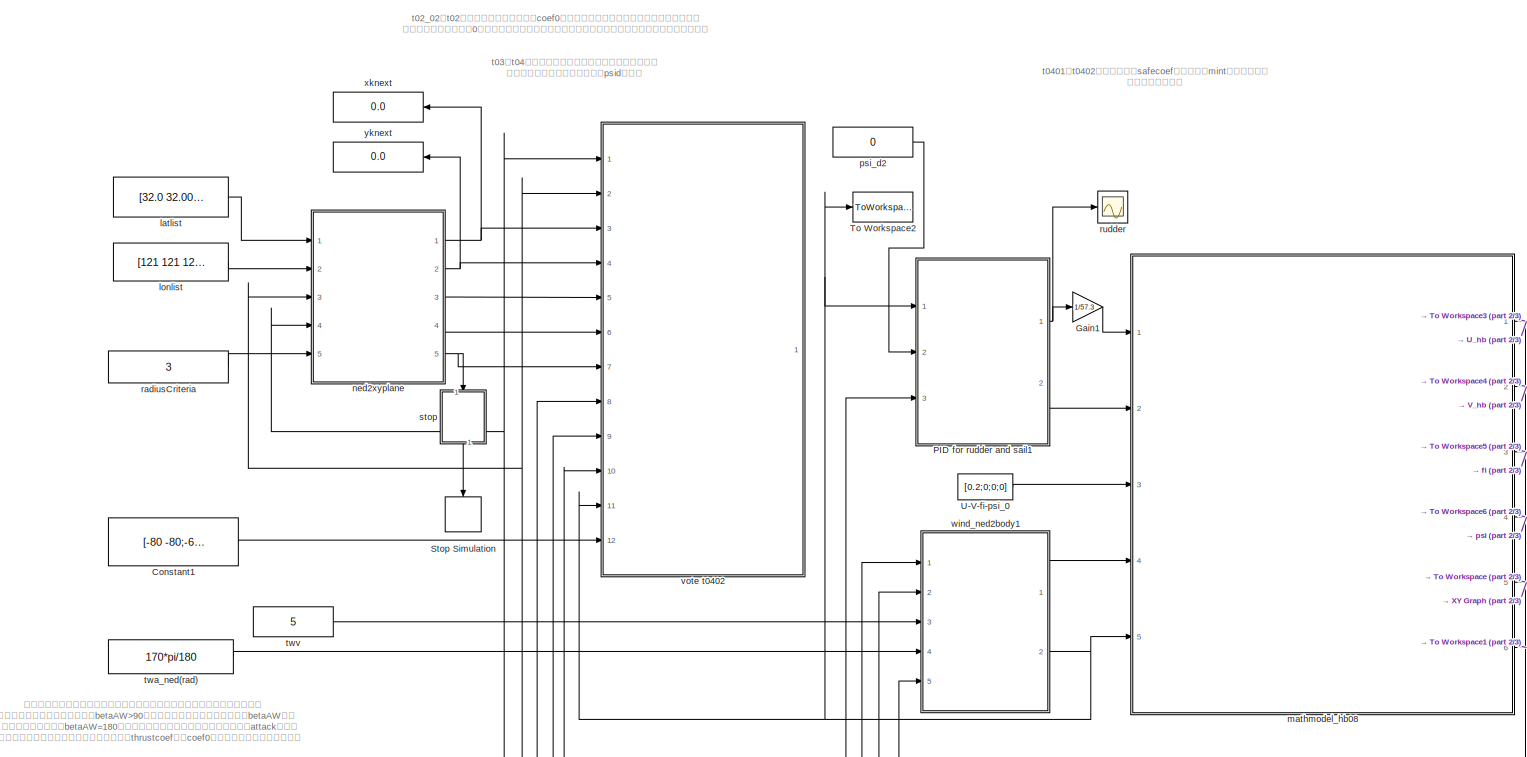
[diagram: root canvas - part 1/3, center side, full height]
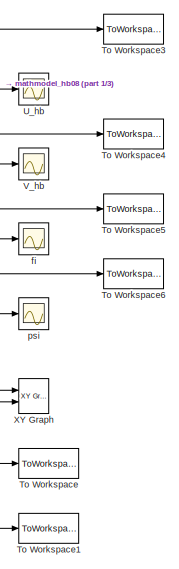
[diagram: root canvas - part 2/3, middle right region]
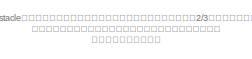
[diagram: root canvas - part 3/3, middle left region]
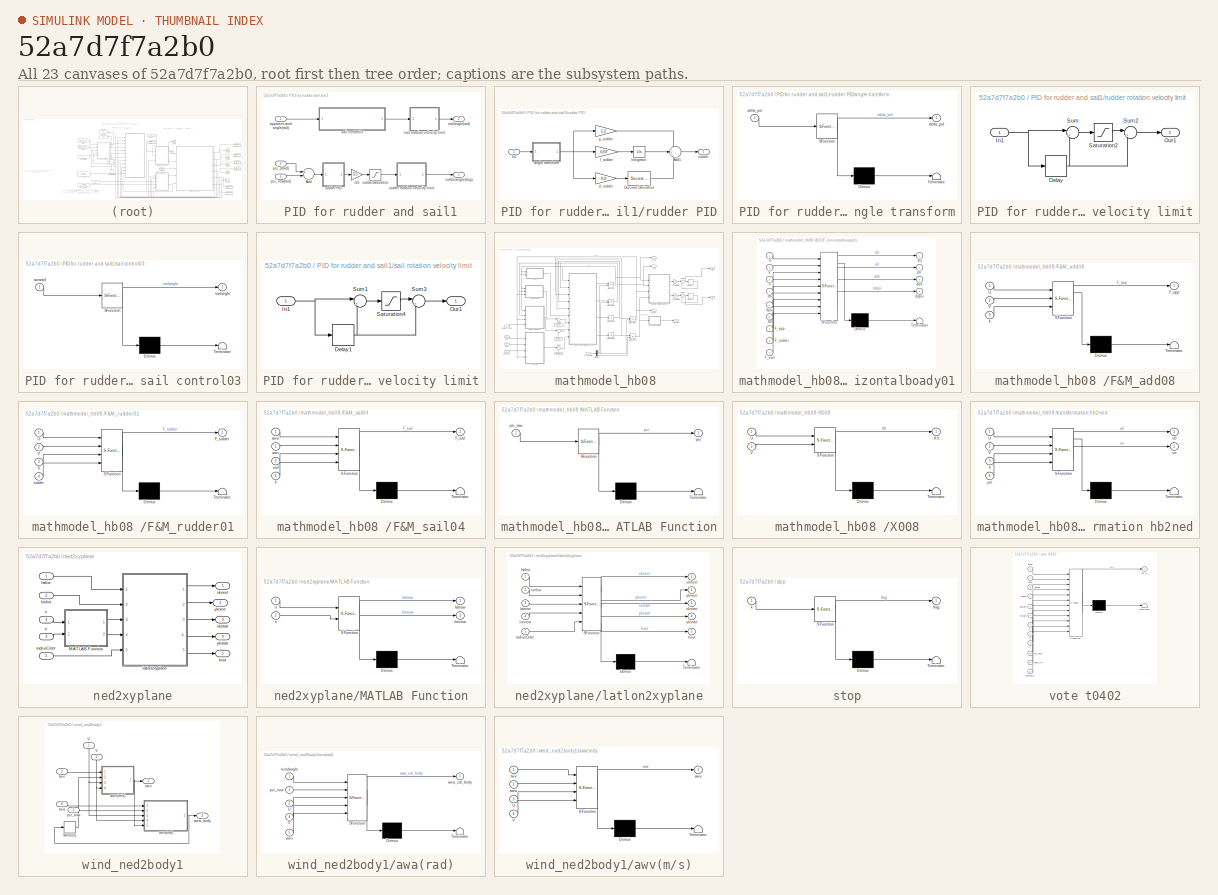
[diagram: thumbnail index - all 23 canvases of the model, root first then tree order]
MODEL slx_52a7d7f7a2b0
KIND model
BLOCK [Constant] Constant1
  Value = [-80 -80;-60 -20]
BLOCK [Gain] Gain1
  Gain = 1/57.3
  OutDataTypeStr = Inherit: Inherit via internal rule
  ParamDataTypeStr = Inherit: Inherit via internal rule
  SaturateOnIntegerOverflow = off
BLOCK [SubSystem] PID for rudder and sail1
  Ports = [3, 2]
  RequestExecContextInheritance = off
BLOCK [Sum] PID for rudder and sail1/Add
  InputSameDT = off
  Inputs = +-
  OutDataTypeStr = Inherit: Inherit via internal rule
  Ports = [2, 1]
  SaturateOnIntegerOverflow = off
BLOCK [Inport] PID for rudder and sail1/apparent wind angle(rad)
  IconDisplay = Port number
BLOCK [Inport] PID for rudder and sail1/psi_d(rad)
  IconDisplay = Port number
  Port = 2
BLOCK [Inport] PID for rudder and sail1/psi_now(rad)
  IconDisplay = Port number
  Port = 3
BLOCK [Gain] PID for rudder and sail1/r2d
  Gain = 57.3
  OutDataTypeStr = Inherit: Inherit via internal rule
  ParamDataTypeStr = Inherit: Inherit via internal rule
  SaturateOnIntegerOverflow = off
BLOCK [SubSystem] PID for rudder and sail1/rudder PID
  Ports = [1, 1]
  RequestExecContextInheritance = off
BLOCK [Sum] PID for rudder and sail1/rudder PID/Add1
  IconShape = round
  InputSameDT = off
  Inputs = +++
  OutDataTypeStr = Inherit: Inherit via internal rule
  Ports = [3, 1]
  SaturateOnIntegerOverflow = off
BLOCK [Reference] PID for rudder and sail1/rudder PID/Discrete Derivative  REF=simulink/Discrete/Discrete Derivative
  DoSatur = off
  ICPrevScaledInput = 0.0
  InputProcessing = Inherited
  LockScale = off
  OutDataType = fixdt(1, 16)
  OutDataTypeStr = Inherit: Inherit via internal rule
  OutMax = []
  OutMin = []
  OutScaling = 2^-10
  OutputDataTypeScalingMode = Inherit via internal rule
  Ports = [1, 1]
  RndMeth = Floor
  SourceBlock = simulink/Discrete/Discrete Derivative
  SourceType = Discrete Derivative
  gainval = 1.0
BLOCK [Gain] PID for rudder and sail1/rudder PID/I_rudder
  Gain = 0.07
  OutDataTypeStr = Inherit: Inherit via internal rule
  ParamDataTypeStr = Inherit: Inherit via internal rule
  SaturateOnIntegerOverflow = off
BLOCK [Inport] PID for rudder and sail1/rudder PID/In1
  IconDisplay = Port number
BLOCK [Integrator] PID for rudder and sail1/rudder PID/Integrator
  Ports = [1, 1]
BLOCK [SubSystem] PID for rudder and sail1/rudder PID/angle transform
  ErrorFcn = Stateflow.Translate.translate
  PermitHierarchicalResolution = ExplicitOnly
  Ports = [1, 1]
  RequestExecContextInheritance = off
  SFBlockType = MATLAB Function
  TreatAsAtomicUnit = on
BLOCK [Demux] PID for rudder and sail1/rudder PID/angle transform/ Demux 
  Outputs = 1
  Ports = [1, 1]
BLOCK [S-Function] PID for rudder and sail1/rudder PID/angle transform/ SFunction 
  EnableBusSupport = on
  FunctionName = sf_sfun
  PortCounts = [1 2]
  Ports = [1, 2]
  Tag = Stateflow S-Function final_control_model08t02_02 3
BLOCK [Terminator] PID for rudder and sail1/rudder PID/angle transform/ Terminator 
BLOCK [Outport] PID for rudder and sail1/rudder PID/angle transform/delta_pid
  IconDisplay = Port number
BLOCK [Inport] PID for rudder and sail1/rudder PID/angle transform/delta_psi
  IconDisplay = Port number
BLOCK [Gain] PID for rudder and sail1/rudder PID/d_rudder
  Gain = 0.4
  OutDataTypeStr = Inherit: Inherit via internal rule
  ParamDataTypeStr = Inherit: Inherit via internal rule
  SaturateOnIntegerOverflow = off
BLOCK [Gain] PID for rudder and sail1/rudder PID/p_rudder
  Gain = 1.2
  OutDataTypeStr = Inherit: Inherit via internal rule
  ParamDataTypeStr = Inherit: Inherit via internal rule
  SaturateOnIntegerOverflow = off
BLOCK [Outport] PID for rudder and sail1/rudder PID/rudder
  IconDisplay = Port number
BLOCK [SubSystem] PID for rudder and sail1/rudder rotation velocity limit
  Ports = [1, 1]
  RequestExecContextInheritance = off
BLOCK [Delay] PID for rudder and sail1/rudder rotation velocity limit/Delay
  DelayLength = 1
  InitialCondition = 0
  InputPortMap = u0
  Ports = [1, 1]
BLOCK [Inport] PID for rudder and sail1/rudder rotation velocity limit/In1
  IconDisplay = Port number
BLOCK [Outport] PID for rudder and sail1/rudder rotation velocity limit/Out1
  IconDisplay = Port number
BLOCK [Saturate] PID for rudder and sail1/rudder rotation velocity limit/Saturation2
  InputPortMap = u0
  LowerLimit = -4
  Ports = [1, 1]
  UpperLimit = 4
BLOCK [Sum] PID for rudder and sail1/rudder rotation velocity limit/Sum
  IconShape = round
  InputSameDT = off
  Inputs = |+-
  OutDataTypeStr = Inherit: Inherit via internal rule
  Ports = [2, 1]
  SaturateOnIntegerOverflow = off
BLOCK [Sum] PID for rudder and sail1/rudder rotation velocity limit/Sum2
  IconShape = round
  InputSameDT = off
  Inputs = |++
  OutDataTypeStr = Inherit: Inherit via internal rule
  Ports = [2, 1]
  SaturateOnIntegerOverflow = off
BLOCK [Saturate] PID for rudder and sail1/rudderSaturation
  InputPortMap = u0
  LowerLimit = -35
  Ports = [1, 1]
  UpperLimit = 35
BLOCK [Outport] PID for rudder and sail1/rudderangle(deg)
  IconDisplay = Port number
BLOCK [SubSystem] PID for rudder and sail1/sail control03
  ErrorFcn = Stateflow.Translate.translate
  PermitHierarchicalResolution = ExplicitOnly
  Ports = [1, 1]
  RequestExecContextInheritance = off
  SFBlockType = MATLAB Function
  TreatAsAtomicUnit = on
BLOCK [Demux] PID for rudder and sail1/sail control03/ Demux 
  Outputs = 1
  Ports = [1, 1]
BLOCK [S-Function] PID for rudder and sail1/sail control03/ SFunction 
  EnableBusSupport = on
  FunctionName = sf_sfun
  PortCounts = [1 2]
  Ports = [1, 2]
  Tag = Stateflow S-Function final_control_model08t02_02 7
BLOCK [Terminator] PID for rudder and sail1/sail control03/ Terminator 
BLOCK [Inport] PID for rudder and sail1/sail control03/awarad
  IconDisplay = Port number
BLOCK [Outport] PID for rudder and sail1/sail control03/sailangle
  IconDisplay = Port number
BLOCK [SubSystem] PID for rudder and sail1/sail rotation velocity limit
  Ports = [1, 1]
  RequestExecContextInheritance = off
BLOCK [Delay] PID for rudder and sail1/sail rotation velocity limit/Delay1
  DelayLength = 1
  InitialCondition = 0
  InputPortMap = u0
  Ports = [1, 1]
BLOCK [Inport] PID for rudder and sail1/sail rotation velocity limit/In1
  IconDisplay = Port number
BLOCK [Outport] PID for rudder and sail1/sail rotation velocity limit/Out1
  IconDisplay = Port number
BLOCK [Saturate] PID for rudder and sail1/sail rotation velocity limit/Saturation4
  InputPortMap = u0
  LowerLimit = -4
  Ports = [1, 1]
  UpperLimit = 4
BLOCK [Sum] PID for rudder and sail1/sail rotation velocity limit/Sum1
  IconShape = round
  InputSameDT = off
  Inputs = |+-
  OutDataTypeStr = Inherit: Inherit via internal rule
  Ports = [2, 1]
  SaturateOnIntegerOverflow = off
BLOCK [Sum] PID for rudder and sail1/sail rotation velocity limit/Sum3
  IconShape = round
  InputSameDT = off
  Inputs = |++
  OutDataTypeStr = Inherit: Inherit via internal rule
  Ports = [2, 1]
  SaturateOnIntegerOverflow = off
BLOCK [Outport] PID for rudder and sail1/sailangle(rad)
  IconDisplay = Port number
  Port = 2
BLOCK [Stop] Stop Simulation
BLOCK [ToWorkspace] To Workspace
  FixptAsFi = on
  MaxDataPoints = inf
  Ports = [1]
  SampleTime = -1
  Save2DSignal = 3-D array (concatenate along third dimension)
  SaveFormat = Timeseries
  VariableName = easty
BLOCK [ToWorkspace] To Workspace1
  FixptAsFi = on
  MaxDataPoints = inf
  Ports = [1]
  SampleTime = -1
  Save2DSignal = 3-D array (concatenate along third dimension)
  SaveFormat = Timeseries
  VariableName = northx
BLOCK [ToWorkspace] To Workspace2
  FixptAsFi = on
  MaxDataPoints = inf
  Ports = [1]
  SampleTime = -1
  Save2DSignal = 3-D array (concatenate along third dimension)
  SaveFormat = Timeseries
  VariableName = psi_d
BLOCK [ToWorkspace] To Workspace3
  FixptAsFi = on
  MaxDataPoints = inf
  Ports = [1]
  SampleTime = -1
  Save2DSignal = 3-D array (concatenate along third dimension)
  SaveFormat = Timeseries
  VariableName = U
BLOCK [ToWorkspace] To Workspace4
  FixptAsFi = on
  MaxDataPoints = inf
  Ports = [1]
  SampleTime = -1
  Save2DSignal = 3-D array (concatenate along third dimension)
  SaveFormat = Timeseries
  VariableName = V
BLOCK [ToWorkspace] To Workspace5
  FixptAsFi = on
  MaxDataPoints = inf
  Ports = [1]
  SampleTime = -1
  Save2DSignal = 3-D array (concatenate along third dimension)
  SaveFormat = Timeseries
  VariableName = fi
BLOCK [ToWorkspace] To Workspace6
  FixptAsFi = on
  MaxDataPoints = inf
  Ports = [1]
  SampleTime = -1
  Save2DSignal = 3-D array (concatenate along third dimension)
  SaveFormat = Timeseries
  VariableName = psi
BLOCK [Constant] U-V-fi-psi_0
  Value = [0.2;0;0;0]
BLOCK [Scope] U_hb
  DataFormat = StructureWithTime
  Floating = off
  NumInputPorts = 1
  Ports = [1]
  SampleTime = 0
  SaveName = ScopeData2
  ShowLegends = off
  YMax = 0
  YMin = -0.045
BLOCK [Scope] V_hb
  DataFormat = StructureWithTime
  Floating = off
  NumInputPorts = 1
  Ports = [1]
  SampleTime = 0
  SaveName = ScopeData1
  ShowLegends = off
  YMax = 0.1
  YMin = -0.1
BLOCK [Reference] XY Graph  REF=simulink/Sinks/XY Graph
  Ports = [2]
  SourceBlock = simulink/Sinks/XY Graph
  SourceType = XY scope.
  st = -1
  xmax = 150
  xmin = -050
  ymax = 150
  ymin = -50
BLOCK [Scope] fi
  DataFormat = StructureWithTime
  Floating = off
  NumInputPorts = 1
  Ports = [1]
  SampleTime = 0
  ShowLegends = off
  YMax = 0.25
  YMin = -0.2
BLOCK [Constant] latlist 
  Value = [32.0 32.0009 32.001]
BLOCK [Constant] lonlist
  Value = [121 121 121.001]
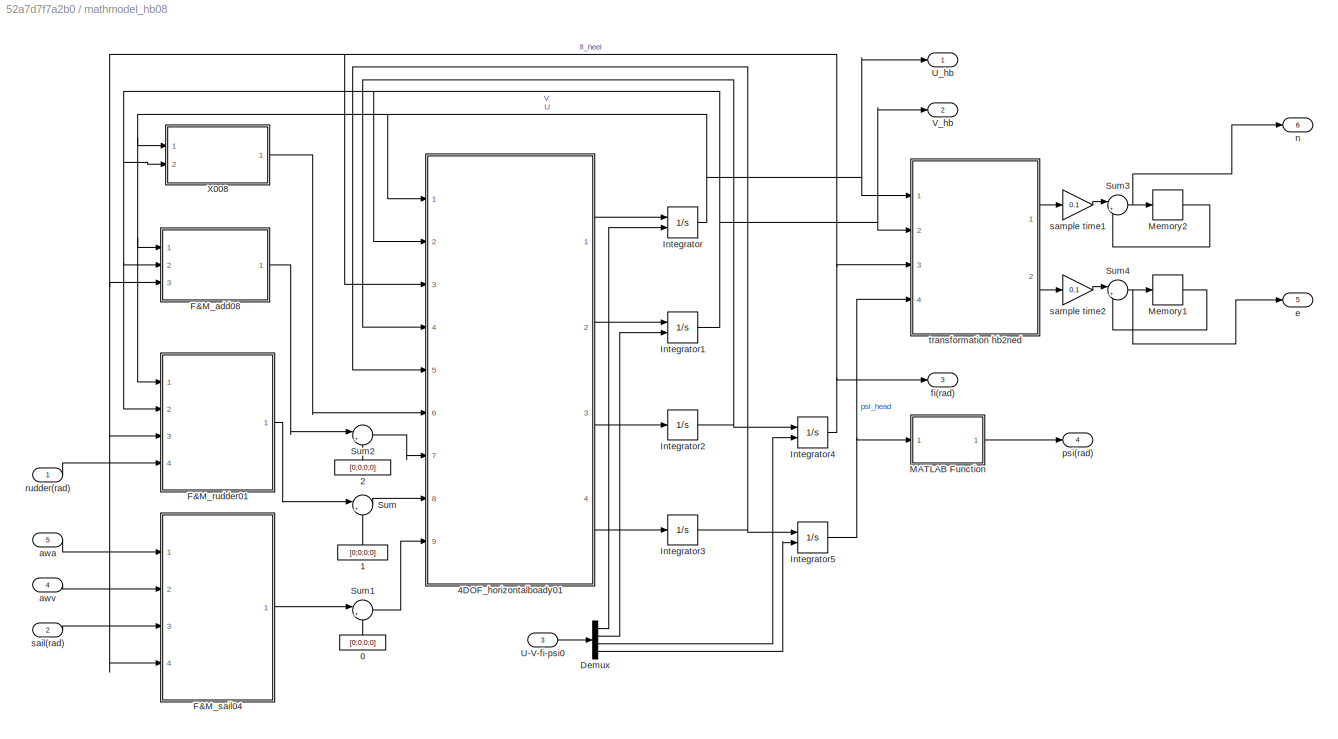
BLOCK [SubSystem] mathmodel_hb08 
  Ports = [5, 6]
  RequestExecContextInheritance = off
BLOCK [Constant] mathmodel_hb08 /0
  Value = [0;0;0;0]
BLOCK [Constant] mathmodel_hb08 /1
  Value = [0;0;0;0]
BLOCK [Constant] mathmodel_hb08 /2
  Value = [0;0;0;0]
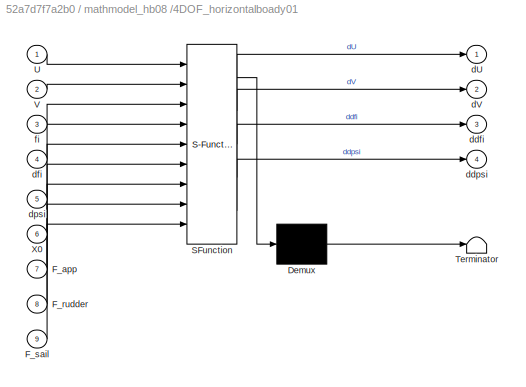
BLOCK [SubSystem] mathmodel_hb08 /4DOF_horizontalboady01
  ErrorFcn = Stateflow.Translate.translate
  PermitHierarchicalResolution = ExplicitOnly
  Ports = [9, 4]
  RequestExecContextInheritance = off
  SFBlockType = MATLAB Function
  TreatAsAtomicUnit = on
BLOCK [Demux] mathmodel_hb08 /4DOF_horizontalboady01/ Demux 
  Outputs = 1
  Ports = [1, 1]
BLOCK [S-Function] mathmodel_hb08 /4DOF_horizontalboady01/ SFunction 
  EnableBusSupport = on
  FunctionName = sf_sfun
  Parameters = par
  PortCounts = [9 5]
  Ports = [9, 5]
  Tag = Stateflow S-Function final_control_model08t02_02 18
BLOCK [Terminator] mathmodel_hb08 /4DOF_horizontalboady01/ Terminator 
BLOCK [Inport] mathmodel_hb08 /4DOF_horizontalboady01/F_app
  IconDisplay = Port number
  Port = 7
BLOCK [Inport] mathmodel_hb08 /4DOF_horizontalboady01/F_rudder
  IconDisplay = Port number
  Port = 8
BLOCK [Inport] mathmodel_hb08 /4DOF_horizontalboady01/F_sail
  IconDisplay = Port number
  Port = 9
BLOCK [Inport] mathmodel_hb08 /4DOF_horizontalboady01/U
  IconDisplay = Port number
BLOCK [Inport] mathmodel_hb08 /4DOF_horizontalboady01/V
  IconDisplay = Port number
  Port = 2
BLOCK [Inport] mathmodel_hb08 /4DOF_horizontalboady01/X0
  IconDisplay = Port number
  Port = 6
BLOCK [Outport] mathmodel_hb08 /4DOF_horizontalboady01/dU
  IconDisplay = Port number
BLOCK [Outport] mathmodel_hb08 /4DOF_horizontalboady01/dV
  IconDisplay = Port number
  Port = 2
BLOCK [Outport] mathmodel_hb08 /4DOF_horizontalboady01/ddfi
  IconDisplay = Port number
  Port = 3
BLOCK [Outport] mathmodel_hb08 /4DOF_horizontalboady01/ddpsi
  IconDisplay = Port number
  Port = 4
BLOCK [Inport] mathmodel_hb08 /4DOF_horizontalboady01/dfi
  IconDisplay = Port number
  Port = 4
BLOCK [Inport] mathmodel_hb08 /4DOF_horizontalboady01/dpsi
  IconDisplay = Port number
  Port = 5
BLOCK [Inport] mathmodel_hb08 /4DOF_horizontalboady01/fi
  IconDisplay = Port number
  Port = 3
BLOCK [Demux] mathmodel_hb08 /Demux
  DisplayOption = bar
  Ports = [1, 4]
BLOCK [SubSystem] mathmodel_hb08 /F&M_add08
  ErrorFcn = Stateflow.Translate.translate
  PermitHierarchicalResolution = ExplicitOnly
  Ports = [3, 1]
  RequestExecContextInheritance = off
  SFBlockType = MATLAB Function
  TreatAsAtomicUnit = on
BLOCK [Demux] mathmodel_hb08 /F&M_add08/ Demux 
  Outputs = 1
  Ports = [1, 1]
BLOCK [S-Function] mathmodel_hb08 /F&M_add08/ SFunction 
  EnableBusSupport = on
  FunctionName = sf_sfun
  Parameters = par
  PortCounts = [3 2]
  Ports = [3, 2]
  Tag = Stateflow S-Function final_control_model08t02_02 4
BLOCK [Terminator] mathmodel_hb08 /F&M_add08/ Terminator 
BLOCK [Outport] mathmodel_hb08 /F&M_add08/F_app
  IconDisplay = Port number
BLOCK [Inport] mathmodel_hb08 /F&M_add08/U
  IconDisplay = Port number
BLOCK [Inport] mathmodel_hb08 /F&M_add08/V
  IconDisplay = Port number
  Port = 2
BLOCK [Inport] mathmodel_hb08 /F&M_add08/fi
  IconDisplay = Port number
  Port = 3
BLOCK [SubSystem] mathmodel_hb08 /F&M_rudder01
  ErrorFcn = Stateflow.Translate.translate
  PermitHierarchicalResolution = ExplicitOnly
  Ports = [4, 1]
  RequestExecContextInheritance = off
  SFBlockType = MATLAB Function
  TreatAsAtomicUnit = on
BLOCK [Demux] mathmodel_hb08 /F&M_rudder01/ Demux 
  Outputs = 1
  Ports = [1, 1]
BLOCK [S-Function] mathmodel_hb08 /F&M_rudder01/ SFunction 
  EnableBusSupport = on
  FunctionName = sf_sfun
  Parameters = par
  PortCounts = [4 2]
  Ports = [4, 2]
  Tag = Stateflow S-Function final_control_model08t02_02 20
BLOCK [Terminator] mathmodel_hb08 /F&M_rudder01/ Terminator 
BLOCK [Outport] mathmodel_hb08 /F&M_rudder01/F_rudder
  IconDisplay = Port number
BLOCK [Inport] mathmodel_hb08 /F&M_rudder01/U
  IconDisplay = Port number
BLOCK [Inport] mathmodel_hb08 /F&M_rudder01/V
  IconDisplay = Port number
  Port = 2
BLOCK [Inport] mathmodel_hb08 /F&M_rudder01/fi
  IconDisplay = Port number
  Port = 3
BLOCK [Inport] mathmodel_hb08 /F&M_rudder01/rudder
  IconDisplay = Port number
  Port = 4
BLOCK [SubSystem] mathmodel_hb08 /F&M_sail04
  ErrorFcn = Stateflow.Translate.translate
  PermitHierarchicalResolution = ExplicitOnly
  Ports = [4, 1]
  RequestExecContextInheritance = off
  SFBlockType = MATLAB Function
  TreatAsAtomicUnit = on
BLOCK [Demux] mathmodel_hb08 /F&M_sail04/ Demux 
  Outputs = 1
  Ports = [1, 1]
BLOCK [S-Function] mathmodel_hb08 /F&M_sail04/ SFunction 
  EnableBusSupport = on
  FunctionName = sf_sfun
  Parameters = par
  PortCounts = [4 2]
  Ports = [4, 2]
  Tag = Stateflow S-Function final_control_model08t02_02 21
BLOCK [Terminator] mathmodel_hb08 /F&M_sail04/ Terminator 
BLOCK [Outport] mathmodel_hb08 /F&M_sail04/F_sail
  IconDisplay = Port number
BLOCK [Inport] mathmodel_hb08 /F&M_sail04/awa
  IconDisplay = Port number
BLOCK [Inport] mathmodel_hb08 /F&M_sail04/awv
  IconDisplay = Port number
  Port = 2
BLOCK [Inport] mathmodel_hb08 /F&M_sail04/fi
  IconDisplay = Port number
  Port = 4
BLOCK [Inport] mathmodel_hb08 /F&M_sail04/sail
  IconDisplay = Port number
  Port = 3
BLOCK [Integrator] mathmodel_hb08 /Integrator
  InitialConditionSource = external
  Ports = [2, 1]
BLOCK [Integrator] mathmodel_hb08 /Integrator1
  InitialConditionSource = external
  Ports = [2, 1]
BLOCK [Integrator] mathmodel_hb08 /Integrator2
  Ports = [1, 1]
BLOCK [Integrator] mathmodel_hb08 /Integrator3
  Ports = [1, 1]
BLOCK [Integrator] mathmodel_hb08 /Integrator4
  InitialConditionSource = external
  Ports = [2, 1]
BLOCK [Integrator] mathmodel_hb08 /Integrator5
  InitialConditionSource = external
  Ports = [2, 1]
BLOCK [SubSystem] mathmodel_hb08 /MATLAB Function
  ErrorFcn = Stateflow.Translate.translate
  PermitHierarchicalResolution = ExplicitOnly
  Ports = [1, 1]
  RequestExecContextInheritance = off
  SFBlockType = MATLAB Function
  TreatAsAtomicUnit = on
BLOCK [Demux] mathmodel_hb08 /MATLAB Function/ Demux 
  Outputs = 1
  Ports = [1, 1]
BLOCK [S-Function] mathmodel_hb08 /MATLAB Function/ SFunction 
  EnableBusSupport = on
  FunctionName = sf_sfun
  PortCounts = [1 2]
  Ports = [1, 2]
  Tag = Stateflow S-Function final_control_model08t02_02 22
BLOCK [Terminator] mathmodel_hb08 /MATLAB Function/ Terminator 
BLOCK [Outport] mathmodel_hb08 /MATLAB Function/psi
  IconDisplay = Port number
BLOCK [Inport] mathmodel_hb08 /MATLAB Function/psi_raw
  IconDisplay = Port number
BLOCK [Memory] mathmodel_hb08 /Memory1
  InheritSampleTime = on
BLOCK [Memory] mathmodel_hb08 /Memory2
  InheritSampleTime = on
BLOCK [Sum] mathmodel_hb08 /Sum
  IconShape = round
  InputSameDT = off
  Inputs = |++
  OutDataTypeStr = Inherit: Inherit via internal rule
  Ports = [2, 1]
  SaturateOnIntegerOverflow = off
BLOCK [Sum] mathmodel_hb08 /Sum1
  IconShape = round
  InputSameDT = off
  Inputs = |++
  OutDataTypeStr = Inherit: Inherit via internal rule
  Ports = [2, 1]
  SaturateOnIntegerOverflow = off
BLOCK [Sum] mathmodel_hb08 /Sum2
  IconShape = round
  InputSameDT = off
  Inputs = |++
  OutDataTypeStr = Inherit: Inherit via internal rule
  Ports = [2, 1]
  SaturateOnIntegerOverflow = off
BLOCK [Sum] mathmodel_hb08 /Sum3
  IconShape = round
  InputSameDT = off
  Inputs = |++
  OutDataTypeStr = Inherit: Inherit via internal rule
  Ports = [2, 1]
  SaturateOnIntegerOverflow = off
BLOCK [Sum] mathmodel_hb08 /Sum4
  IconShape = round
  InputSameDT = off
  Inputs = |++
  OutDataTypeStr = Inherit: Inherit via internal rule
  Ports = [2, 1]
  SaturateOnIntegerOverflow = off
BLOCK [Inport] mathmodel_hb08 /U-V-fi-psi0
  IconDisplay = Port number
  Port = 3
BLOCK [Outport] mathmodel_hb08 /U_hb
  IconDisplay = Port number
BLOCK [Outport] mathmodel_hb08 /V_hb
  IconDisplay = Port number
  Port = 2
BLOCK [SubSystem] mathmodel_hb08 /X008
  ErrorFcn = Stateflow.Translate.translate
  PermitHierarchicalResolution = ExplicitOnly
  Ports = [2, 1]
  RequestExecContextInheritance = off
  SFBlockType = MATLAB Function
  TreatAsAtomicUnit = on
BLOCK [Demux] mathmodel_hb08 /X008/ Demux 
  Outputs = 1
  Ports = [1, 1]
BLOCK [S-Function] mathmodel_hb08 /X008/ SFunction 
  EnableBusSupport = on
  FunctionName = sf_sfun
  Parameters = par
  PortCounts = [2 2]
  Ports = [2, 2]
  Tag = Stateflow S-Function final_control_model08t02_02 23
BLOCK [Terminator] mathmodel_hb08 /X008/ Terminator 
BLOCK [Inport] mathmodel_hb08 /X008/U
  IconDisplay = Port number
BLOCK [Inport] mathmodel_hb08 /X008/V
  IconDisplay = Port number
  Port = 2
BLOCK [Outport] mathmodel_hb08 /X008/X0
  IconDisplay = Port number
BLOCK [Inport] mathmodel_hb08 /awa
  IconDisplay = Port number
  Port = 5
BLOCK [Inport] mathmodel_hb08 /awv
  IconDisplay = Port number
  Port = 4
BLOCK [Outport] mathmodel_hb08 /e
  IconDisplay = Port number
  Port = 5
BLOCK [Outport] mathmodel_hb08 /fi(rad)
  IconDisplay = Port number
  Port = 3
BLOCK [Outport] mathmodel_hb08 /n
  IconDisplay = Port number
  Port = 6
BLOCK [Outport] mathmodel_hb08 /psi(rad)
  IconDisplay = Port number
  Port = 4
BLOCK [Inport] mathmodel_hb08 /rudder(rad)
  IconDisplay = Port number
BLOCK [Inport] mathmodel_hb08 /sail(rad)
  IconDisplay = Port number
  Port = 2
BLOCK [Gain] mathmodel_hb08 /sample time1
  Gain = 0.1
  OutDataTypeStr = Inherit: Inherit via internal rule
  ParamDataTypeStr = Inherit: Inherit via internal rule
  SaturateOnIntegerOverflow = off
BLOCK [Gain] mathmodel_hb08 /sample time2
  Gain = 0.1
  OutDataTypeStr = Inherit: Inherit via internal rule
  ParamDataTypeStr = Inherit: Inherit via internal rule
  SaturateOnIntegerOverflow = off
BLOCK [SubSystem] mathmodel_hb08 /transformation hb2ned
  ErrorFcn = Stateflow.Translate.translate
  PermitHierarchicalResolution = ExplicitOnly
  Ports = [4, 2]
  RequestExecContextInheritance = off
  SFBlockType = MATLAB Function
  TreatAsAtomicUnit = on
BLOCK [Demux] mathmodel_hb08 /transformation hb2ned/ Demux 
  Outputs = 1
  Ports = [1, 1]
BLOCK [S-Function] mathmodel_hb08 /transformation hb2ned/ SFunction 
  EnableBusSupport = on
  FunctionName = sf_sfun
  PortCounts = [4 3]
  Ports = [4, 3]
  Tag = Stateflow S-Function final_control_model08t02_02 24
BLOCK [Terminator] mathmodel_hb08 /transformation hb2ned/ Terminator 
BLOCK [Inport] mathmodel_hb08 /transformation hb2ned/U
  IconDisplay = Port number
BLOCK [Inport] mathmodel_hb08 /transformation hb2ned/V
  IconDisplay = Port number
  Port = 2
BLOCK [Inport] mathmodel_hb08 /transformation hb2ned/fi
  IconDisplay = Port number
  Port = 3
BLOCK [Inport] mathmodel_hb08 /transformation hb2ned/psi
  IconDisplay = Port number
  Port = 4
BLOCK [Outport] mathmodel_hb08 /transformation hb2ned/u0
  IconDisplay = Port number
BLOCK [Outport] mathmodel_hb08 /transformation hb2ned/vo
  IconDisplay = Port number
  Port = 2
BLOCK [SubSystem] ned2xyplane
  Ports = [5, 5]
  RequestExecContextInheritance = off
BLOCK [SubSystem] ned2xyplane/MATLAB Function
  ErrorFcn = Stateflow.Translate.translate
  PermitHierarchicalResolution = ExplicitOnly
  Ports = [2, 2]
  RequestExecContextInheritance = off
  SFBlockType = MATLAB Function
  TreatAsAtomicUnit = on
BLOCK [Demux] ned2xyplane/MATLAB Function/ Demux 
  Outputs = 1
  Ports = [1, 1]
BLOCK [S-Function] ned2xyplane/MATLAB Function/ SFunction 
  EnableBusSupport = on
  FunctionName = sf_sfun
  PortCounts = [2 3]
  Ports = [2, 3]
  Tag = Stateflow S-Function final_control_model08t02_02 2
BLOCK [Terminator] ned2xyplane/MATLAB Function/ Terminator 
BLOCK [Inport] ned2xyplane/MATLAB Function/e
  IconDisplay = Port number
  Port = 2
BLOCK [Outport] ned2xyplane/MATLAB Function/latnow
  IconDisplay = Port number
BLOCK [Outport] ned2xyplane/MATLAB Function/lonnow
  IconDisplay = Port number
  Port = 2
BLOCK [Inport] ned2xyplane/MATLAB Function/n
  IconDisplay = Port number
BLOCK [Inport] ned2xyplane/e
  IconDisplay = Port number
  Port = 3
BLOCK [Outport] ned2xyplane/kout
  IconDisplay = Port number
  Port = 5
BLOCK [Inport] ned2xyplane/latlist
  IconDisplay = Port number
BLOCK [SubSystem] ned2xyplane/latlon2xyplane
  ErrorFcn = Stateflow.Translate.translate
  PermitHierarchicalResolution = ExplicitOnly
  Ports = [5, 5]
  RequestExecContextInheritance = off
  SFBlockType = MATLAB Function
  TreatAsAtomicUnit = on
BLOCK [Demux] ned2xyplane/latlon2xyplane/ Demux 
  Outputs = 1
  Ports = [1, 1]
BLOCK [S-Function] ned2xyplane/latlon2xyplane/ SFunction 
  EnableBusSupport = on
  FunctionName = sf_sfun
  PortCounts = [5 6]
  Ports = [5, 6]
  Tag = Stateflow S-Function final_control_model08t02_02 6
BLOCK [Terminator] ned2xyplane/latlon2xyplane/ Terminator 
BLOCK [Outport] ned2xyplane/latlon2xyplane/kout
  IconDisplay = Port number
  Port = 5
BLOCK [Inport] ned2xyplane/latlon2xyplane/latlist
  IconDisplay = Port number
BLOCK [Inport] ned2xyplane/latlon2xyplane/latnow
  IconDisplay = Port number
  Port = 3
BLOCK [Inport] ned2xyplane/latlon2xyplane/lonlist
  IconDisplay = Port number
  Port = 2
BLOCK [Inport] ned2xyplane/latlon2xyplane/lonnow
  IconDisplay = Port number
  Port = 4
BLOCK [Inport] ned2xyplane/latlon2xyplane/radiusCriter
  IconDisplay = Port number
  Port = 5
BLOCK [Outport] ned2xyplane/latlon2xyplane/xknext
  IconDisplay = Port number
BLOCK [Outport] ned2xyplane/latlon2xyplane/xkstart
  IconDisplay = Port number
  Port = 3
BLOCK [Outport] ned2xyplane/latlon2xyplane/yknext
  IconDisplay = Port number
  Port = 2
BLOCK [Outport] ned2xyplane/latlon2xyplane/ykstart
  IconDisplay = Port number
  Port = 4
BLOCK [Inport] ned2xyplane/lonlist
  IconDisplay = Port number
  Port = 2
BLOCK [Inport] ned2xyplane/n
  IconDisplay = Port number
  Port = 4
BLOCK [Inport] ned2xyplane/radiusCriter
  IconDisplay = Port number
  Port = 5
BLOCK [Outport] ned2xyplane/xknext
  IconDisplay = Port number
BLOCK [Outport] ned2xyplane/xkstart
  IconDisplay = Port number
  Port = 3
BLOCK [Outport] ned2xyplane/yknext
  IconDisplay = Port number
  Port = 2
BLOCK [Outport] ned2xyplane/ykstart
  IconDisplay = Port number
  Port = 4
BLOCK [Scope] psi 
  DataFormat = StructureWithTime
  Floating = off
  NumInputPorts = 1
  Ports = [1]
  SampleTime = 0
  SaveName = ScopeData3
  ShowLegends = off
  YMax = 4
  YMin = -4
BLOCK [Constant] psi_d2
  Value = 0
BLOCK [Constant] radiusCriteria
  Value = 3
BLOCK [Scope] rudder
  DataFormat = StructureWithTime
  Floating = off
  NumInputPorts = 1
  Ports = [1]
  SampleTime = 0
  SaveName = ScopeData4
  ShowLegends = off
  YMax = 40
  YMin = -40
BLOCK [SubSystem] stop
  ErrorFcn = Stateflow.Translate.translate
  PermitHierarchicalResolution = ExplicitOnly
  Ports = [1, 1]
  RequestExecContextInheritance = off
  SFBlockType = MATLAB Function
  TreatAsAtomicUnit = on
BLOCK [Demux] stop/ Demux 
  Outputs = 1
  Ports = [1, 1]
BLOCK [S-Function] stop/ SFunction 
  EnableBusSupport = on
  FunctionName = sf_sfun
  PortCounts = [1 2]
  Ports = [1, 2]
  Tag = Stateflow S-Function final_control_model08t02_02 5
BLOCK [Terminator] stop/ Terminator 
BLOCK [Outport] stop/flag
  IconDisplay = Port number
BLOCK [Inport] stop/k
  IconDisplay = Port number
BLOCK [Constant] twa_ned(rad)
  Value = 170*pi/180
BLOCK [Constant] twv
  Value = 5
BLOCK [SubSystem] vote t0402
  ErrorFcn = Stateflow.Translate.translate
  PermitHierarchicalResolution = ExplicitOnly
  Ports = [12, 1]
  RequestExecContextInheritance = off
  SFBlockType = MATLAB Function
  TreatAsAtomicUnit = on
BLOCK [Demux] vote t0402/ Demux 
  Outputs = 1
  Ports = [1, 1]
BLOCK [S-Function] vote t0402/ SFunction 
  EnableBusSupport = on
  FunctionName = sf_sfun
  PortCounts = [12 2]
  Ports = [12, 2]
  Tag = Stateflow S-Function final_control_model08t02_02 8
BLOCK [Terminator] vote t0402/ Terminator 
BLOCK [Inport] vote t0402/U
  IconDisplay = Port number
  Port = 8
BLOCK [Inport] vote t0402/V
  IconDisplay = Port number
  Port = 9
BLOCK [Inport] vote t0402/betaAW
  IconDisplay = Port number
  Port = 11
BLOCK [Inport] vote t0402/k
  IconDisplay = Port number
  Port = 7
BLOCK [Inport] vote t0402/obstacle
  IconDisplay = Port number
  Port = 12
BLOCK [Outport] vote t0402/psi_d
  IconDisplay = Port number
BLOCK [Inport] vote t0402/psi_now
  IconDisplay = Port number
  Port = 10
BLOCK [Inport] vote t0402/xknext
  IconDisplay = Port number
  Port = 3
BLOCK [Inport] vote t0402/xkstart
  IconDisplay = Port number
  Port = 5
BLOCK [Inport] vote t0402/xnow
  IconDisplay = Port number
BLOCK [Inport] vote t0402/yknext
  IconDisplay = Port number
  Port = 4
BLOCK [Inport] vote t0402/ykstart
  IconDisplay = Port number
  Port = 6
BLOCK [Inport] vote t0402/ynow
  IconDisplay = Port number
  Port = 2
BLOCK [SubSystem] wind_ned2body1
  Ports = [5, 2]
  RequestExecContextInheritance = off
BLOCK [Memory] wind_ned2body1/Memory
BLOCK [Inport] wind_ned2body1/U
  IconDisplay = Port number
BLOCK [Inport] wind_ned2body1/V
  IconDisplay = Port number
  Port = 2
BLOCK [SubSystem] wind_ned2body1/awa(rad)
  ErrorFcn = Stateflow.Translate.translate
  PermitHierarchicalResolution = ExplicitOnly
  Ports = [5, 1]
  RequestExecContextInheritance = off
  SFBlockType = MATLAB Function
  TreatAsAtomicUnit = on
BLOCK [Demux] wind_ned2body1/awa(rad)/ Demux 
  Outputs = 1
  Ports = [1, 1]
BLOCK [S-Function] wind_ned2body1/awa(rad)/ SFunction 
  EnableBusSupport = on
  FunctionName = sf_sfun
  PortCounts = [5 2]
  Ports = [5, 2]
  Tag = Stateflow S-Function final_control_model08t02_02 1
BLOCK [Terminator] wind_ned2body1/awa(rad)/ Terminator 
BLOCK [Inport] wind_ned2body1/awa(rad)/U
  IconDisplay = Port number
  Port = 3
BLOCK [Inport] wind_ned2body1/awa(rad)/V
  IconDisplay = Port number
  Port = 4
BLOCK [Outport] wind_ned2body1/awa(rad)/awa_cal_body
  IconDisplay = Port number
BLOCK [Inport] wind_ned2body1/awa(rad)/awv
  IconDisplay = Port number
  Port = 5
BLOCK [Inport] wind_ned2body1/awa(rad)/psi_now
  IconDisplay = Port number
  Port = 2
BLOCK [Inport] wind_ned2body1/awa(rad)/windangle
  IconDisplay = Port number
BLOCK [Outport] wind_ned2body1/awa_body
  IconDisplay = Port number
  Port = 2
BLOCK [Outport] wind_ned2body1/awv
  IconDisplay = Port number
BLOCK [SubSystem] wind_ned2body1/awv(m//s)
  ErrorFcn = Stateflow.Translate.translate
  PermitHierarchicalResolution = ExplicitOnly
  Ports = [4, 1]
  RequestExecContextInheritance = off
  SFBlockType = MATLAB Function
  TreatAsAtomicUnit = on
BLOCK [Demux] wind_ned2body1/awv(m//s)/ Demux 
  Outputs = 1
  Ports = [1, 1]
BLOCK [S-Function] wind_ned2body1/awv(m//s)/ SFunction 
  EnableBusSupport = on
  FunctionName = sf_sfun
  PortCounts = [4 2]
  Ports = [4, 2]
  Tag = Stateflow S-Function final_control_model08t02_02 10
BLOCK [Terminator] wind_ned2body1/awv(m//s)/ Terminator 
BLOCK [Inport] wind_ned2body1/awv(m//s)/U
  IconDisplay = Port number
  Port = 3
BLOCK [Inport] wind_ned2body1/awv(m//s)/V
  IconDisplay = Port number
  Port = 4
BLOCK [Inport] wind_ned2body1/awv(m//s)/awa
  IconDisplay = Port number
  Port = 2
BLOCK [Outport] wind_ned2body1/awv(m//s)/awv
  IconDisplay = Port number
BLOCK [Inport] wind_ned2body1/awv(m//s)/twv
  IconDisplay = Port number
BLOCK [Inport] wind_ned2body1/psi_now
  IconDisplay = Port number
  Port = 5
BLOCK [Inport] wind_ned2body1/twa
  IconDisplay = Port number
  Port = 4
BLOCK [Inport] wind_ned2body1/twv
  IconDisplay = Port number
  Port = 3
BLOCK [Display] xknext
  Decimation = 1
  Ports = [1]
BLOCK [Display] yknext
  Decimation = 1
  Ports = [1]
ANNOTATION (root): obstacle的两点间距需要不大，若过大则会导致帆船在避碰时当在2/3区时，只识别端点 作为最危险点，而不认为在邻近位置有危险，这显然不合理。 暂时还没想到怎么解决
ANNOTATION (root): t02_02与t02相比，推力系数的修正值coef0的取值方法不同，后者是用几个固定值作插值 前者是用相对风向角为0时的推力值（即推力曲线的最小值）取绝对值（保证推力始终为正或非负）
ANNOTATION (root): t03与t04的思路都不一样，是选择推力、安全、转角 三个评判标准权重求和得最大的psid的策略
ANNOTATION (root): t0401与t0402相比，后者在safecoef的选择上与mint相关，而不是 采用分段的形式。
ANNOTATION (root): 在迎风时，避碰路径会有部分锯齿，似乎是因为最大推力的选择曲线不再光滑 在顺风时，无法避碰，这是因为在betaAW>90时，迎风的方向推力变的非常小，betaAW越大 这种现象越明显，甚至在betaAW=180时，不允许船往正面的半圆范围，这是因为attack不变， 最大推力图自然有这种性质，解决办法：人为将thrustcoef加上coef0，把原先小于零的都显露出来
LINE Constant1:1 -> vote t0402:12
LINE Gain1:1 -> mathmodel_hb08 :1
LINE PID for rudder and sail1/Add:1 -> PID for rudder and sail1/rudder PID:1
LINE PID for rudder and sail1/apparent wind angle(rad):1 -> PID for rudder and sail1/sail control03:1
LINE PID for rudder and sail1/psi_d(rad):1 -> PID for rudder and sail1/Add:1
LINE PID for rudder and sail1/psi_now(rad):1 -> PID for rudder and sail1/Add:2
LINE PID for rudder and sail1/r2d:1 -> PID for rudder and sail1/rudderSaturation:1
LINE PID for rudder and sail1/rudder PID/Add1:1 -> PID for rudder and sail1/rudder PID/rudder:1
LINE PID for rudder and sail1/rudder PID/Discrete Derivative:1 -> PID for rudder and sail1/rudder PID/Add1:3
LINE PID for rudder and sail1/rudder PID/I_rudder:1 -> PID for rudder and sail1/rudder PID/Integrator:1
LINE PID for rudder and sail1/rudder PID/In1:1 -> PID for rudder and sail1/rudder PID/angle transform:1
LINE PID for rudder and sail1/rudder PID/Integrator:1 -> PID for rudder and sail1/rudder PID/Add1:2
NET PID for rudder and sail1/rudder PID/angle transform:1 -> PID for rudder and sail1/rudder PID/I_rudder:1, PID for rudder and sail1/rudder PID/d_rudder:1, PID for rudder and sail1/rudder PID/p_rudder:1
LINE PID for rudder and sail1/rudder PID/d_rudder:1 -> PID for rudder and sail1/rudder PID/Discrete Derivative:1
LINE PID for rudder and sail1/rudder PID/p_rudder:1 -> PID for rudder and sail1/rudder PID/Add1:1
LINE PID for rudder and sail1/rudder PID:1 -> PID for rudder and sail1/r2d:1
NET PID for rudder and sail1/rudder rotation velocity limit/Delay:1 -> PID for rudder and sail1/rudder rotation velocity limit/Sum2:2, PID for rudder and sail1/rudder rotation velocity limit/Sum:2
NET PID for rudder and sail1/rudder rotation velocity limit/In1:1 -> PID for rudder and sail1/rudder rotation velocity limit/Delay:1, PID for rudder and sail1/rudder rotation velocity limit/Sum:1
LINE PID for rudder and sail1/rudder rotation velocity limit/Saturation2:1 -> PID for rudder and sail1/rudder rotation velocity limit/Sum2:1
LINE PID for rudder and sail1/rudder rotation velocity limit/Sum2:1 -> PID for rudder and sail1/rudder rotation velocity limit/Out1:1
LINE PID for rudder and sail1/rudder rotation velocity limit/Sum:1 -> PID for rudder and sail1/rudder rotation velocity limit/Saturation2:1
LINE PID for rudder and sail1/rudder rotation velocity limit:1 -> PID for rudder and sail1/rudderangle(deg):1
LINE PID for rudder and sail1/rudderSaturation:1 -> PID for rudder and sail1/rudder rotation velocity limit:1
LINE PID for rudder and sail1/sail control03:1 -> PID for rudder and sail1/sail rotation velocity limit:1
NET PID for rudder and sail1/sail rotation velocity limit/Delay1:1 -> PID for rudder and sail1/sail rotation velocity limit/Sum1:2, PID for rudder and sail1/sail rotation velocity limit/Sum3:2
NET PID for rudder and sail1/sail rotation velocity limit/In1:1 -> PID for rudder and sail1/sail rotation velocity limit/Delay1:1, PID for rudder and sail1/sail rotation velocity limit/Sum1:1
LINE PID for rudder and sail1/sail rotation velocity limit/Saturation4:1 -> PID for rudder and sail1/sail rotation velocity limit/Sum3:1
LINE PID for rudder and sail1/sail rotation velocity limit/Sum1:1 -> PID for rudder and sail1/sail rotation velocity limit/Saturation4:1
LINE PID for rudder and sail1/sail rotation velocity limit/Sum3:1 -> PID for rudder and sail1/sail rotation velocity limit/Out1:1
LINE PID for rudder and sail1/sail rotation velocity limit:1 -> PID for rudder and sail1/sailangle(rad):1
NET PID for rudder and sail1:1 -> Gain1:1, rudder:1
LINE PID for rudder and sail1:2 -> mathmodel_hb08 :2
LINE U-V-fi-psi_0:1 -> mathmodel_hb08 :3
LINE latlist :1 -> ned2xyplane:1
LINE lonlist:1 -> ned2xyplane:2
LINE mathmodel_hb08 /0:1 -> mathmodel_hb08 /Sum1:2
LINE mathmodel_hb08 /1:1 -> mathmodel_hb08 /Sum:2
LINE mathmodel_hb08 /2:1 -> mathmodel_hb08 /Sum2:2
LINE mathmodel_hb08 /4DOF_horizontalboady01:1 -> mathmodel_hb08 /Integrator:1
LINE mathmodel_hb08 /4DOF_horizontalboady01:2 -> mathmodel_hb08 /Integrator1:1
LINE mathmodel_hb08 /4DOF_horizontalboady01:3 -> mathmodel_hb08 /Integrator2:1
LINE mathmodel_hb08 /4DOF_horizontalboady01:4 -> mathmodel_hb08 /Integrator3:1
LINE mathmodel_hb08 /Demux:1 -> mathmodel_hb08 /Integrator:2
LINE mathmodel_hb08 /Demux:2 -> mathmodel_hb08 /Integrator1:2
LINE mathmodel_hb08 /Demux:3 -> mathmodel_hb08 /Integrator4:2
LINE mathmodel_hb08 /Demux:4 -> mathmodel_hb08 /Integrator5:2
LINE mathmodel_hb08 /F&M_add08:1 -> mathmodel_hb08 /Sum2:1
LINE mathmodel_hb08 /F&M_rudder01:1 -> mathmodel_hb08 /Sum:1
LINE mathmodel_hb08 /F&M_sail04:1 -> mathmodel_hb08 /Sum1:1
NET mathmodel_hb08 /Integrator1:1 -> mathmodel_hb08 /4DOF_horizontalboady01:2, mathmodel_hb08 /F&M_add08:2, mathmodel_hb08 /F&M_rudder01:2, mathmodel_hb08 /V_hb:1, mathmodel_hb08 /X008:2, mathmodel_hb08 /transformation hb2ned:2
NET mathmodel_hb08 /Integrator2:1 -> mathmodel_hb08 /4DOF_horizontalboady01:4, mathmodel_hb08 /Integrator4:1
NET mathmodel_hb08 /Integrator3:1 -> mathmodel_hb08 /4DOF_horizontalboady01:5, mathmodel_hb08 /Integrator5:1
NET mathmodel_hb08 /Integrator4:1 -> mathmodel_hb08 /4DOF_horizontalboady01:3, mathmodel_hb08 /F&M_add08:3, mathmodel_hb08 /F&M_rudder01:3, mathmodel_hb08 /F&M_sail04:4, mathmodel_hb08 /fi(rad):1, mathmodel_hb08 /transformation hb2ned:3
NET mathmodel_hb08 /Integrator5:1 -> mathmodel_hb08 /MATLAB Function:1, mathmodel_hb08 /transformation hb2ned:4
NET mathmodel_hb08 /Integrator:1 -> mathmodel_hb08 /4DOF_horizontalboady01:1, mathmodel_hb08 /F&M_add08:1, mathmodel_hb08 /F&M_rudder01:1, mathmodel_hb08 /U_hb:1, mathmodel_hb08 /X008:1, mathmodel_hb08 /transformation hb2ned:1
LINE mathmodel_hb08 /MATLAB Function:1 -> mathmodel_hb08 /psi(rad):1
LINE mathmodel_hb08 /Memory1:1 -> mathmodel_hb08 /Sum4:2
LINE mathmodel_hb08 /Memory2:1 -> mathmodel_hb08 /Sum3:2
LINE mathmodel_hb08 /Sum1:1 -> mathmodel_hb08 /4DOF_horizontalboady01:9
LINE mathmodel_hb08 /Sum2:1 -> mathmodel_hb08 /4DOF_horizontalboady01:7
NET mathmodel_hb08 /Sum3:1 -> mathmodel_hb08 /Memory2:1, mathmodel_hb08 /n:1
NET mathmodel_hb08 /Sum4:1 -> mathmodel_hb08 /Memory1:1, mathmodel_hb08 /e:1
LINE mathmodel_hb08 /Sum:1 -> mathmodel_hb08 /4DOF_horizontalboady01:8
LINE mathmodel_hb08 /U-V-fi-psi0:1 -> mathmodel_hb08 /Demux:1
LINE mathmodel_hb08 /X008:1 -> mathmodel_hb08 /4DOF_horizontalboady01:6
LINE mathmodel_hb08 /awa:1 -> mathmodel_hb08 /F&M_sail04:1
LINE mathmodel_hb08 /awv:1 -> mathmodel_hb08 /F&M_sail04:2
LINE mathmodel_hb08 /rudder(rad):1 -> mathmodel_hb08 /F&M_rudder01:4
LINE mathmodel_hb08 /sail(rad):1 -> mathmodel_hb08 /F&M_sail04:3
LINE mathmodel_hb08 /sample time1:1 -> mathmodel_hb08 /Sum3:1
LINE mathmodel_hb08 /sample time2:1 -> mathmodel_hb08 /Sum4:1
LINE mathmodel_hb08 /transformation hb2ned:1 -> mathmodel_hb08 /sample time1:1
LINE mathmodel_hb08 /transformation hb2ned:2 -> mathmodel_hb08 /sample time2:1
NET mathmodel_hb08 :1 -> To Workspace3:1, U_hb:1, vote t0402:8, wind_ned2body1:1
NET mathmodel_hb08 :2 -> To Workspace4:1, V_hb:1, vote t0402:9, wind_ned2body1:2
NET mathmodel_hb08 :3 -> To Workspace5:1, fi:1
NET mathmodel_hb08 :4 -> PID for rudder and sail1:3, To Workspace6:1, psi :1, vote t0402:10, wind_ned2body1:5
NET mathmodel_hb08 :5 -> To Workspace:1, XY Graph:1, ned2xyplane:3, vote t0402:2
NET mathmodel_hb08 :6 -> To Workspace1:1, XY Graph:2, ned2xyplane:4, vote t0402:1
LINE ned2xyplane/MATLAB Function:1 -> ned2xyplane/latlon2xyplane:3
LINE ned2xyplane/MATLAB Function:2 -> ned2xyplane/latlon2xyplane:4
LINE ned2xyplane/e:1 -> ned2xyplane/MATLAB Function:2
LINE ned2xyplane/latlist:1 -> ned2xyplane/latlon2xyplane:1
LINE ned2xyplane/latlon2xyplane:1 -> ned2xyplane/xknext:1
LINE ned2xyplane/latlon2xyplane:2 -> ned2xyplane/yknext:1
LINE ned2xyplane/latlon2xyplane:3 -> ned2xyplane/xkstart:1
LINE ned2xyplane/latlon2xyplane:4 -> ned2xyplane/ykstart:1
LINE ned2xyplane/latlon2xyplane:5 -> ned2xyplane/kout:1
LINE ned2xyplane/lonlist:1 -> ned2xyplane/latlon2xyplane:2
LINE ned2xyplane/n:1 -> ned2xyplane/MATLAB Function:1
LINE ned2xyplane/radiusCriter:1 -> ned2xyplane/latlon2xyplane:5
NET ned2xyplane:1 -> vote t0402:3, xknext:1
NET ned2xyplane:2 -> vote t0402:4, yknext:1
LINE ned2xyplane:3 -> vote t0402:5
LINE ned2xyplane:4 -> vote t0402:6
NET ned2xyplane:5 -> stop:1, vote t0402:7
LINE psi_d2:1 -> PID for rudder and sail1:2
LINE radiusCriteria:1 -> ned2xyplane:5
LINE stop:1 -> Stop Simulation:1
LINE twa_ned(rad):1 -> wind_ned2body1:4
LINE twv:1 -> wind_ned2body1:3
LINE wind_ned2body1/Memory:1 -> wind_ned2body1/awv(m//s):2
NET wind_ned2body1/U:1 -> wind_ned2body1/awa(rad):3, wind_ned2body1/awv(m//s):3
NET wind_ned2body1/V:1 -> wind_ned2body1/awa(rad):4, wind_ned2body1/awv(m//s):4
NET wind_ned2body1/awa(rad):1 -> wind_ned2body1/Memory:1, wind_ned2body1/awa_body:1
NET wind_ned2body1/awv(m//s):1 -> wind_ned2body1/awa(rad):5, wind_ned2body1/awv:1
LINE wind_ned2body1/psi_now:1 -> wind_ned2body1/awa(rad):2
LINE wind_ned2body1/twa:1 -> wind_ned2body1/awa(rad):1
LINE wind_ned2body1/twv:1 -> wind_ned2body1/awv(m//s):1
LINE wind_ned2body1:1 -> mathmodel_hb08 :4
NET wind_ned2body1:2 -> PID for rudder and sail1:1, To Workspace2:1, mathmodel_hb08 :5, vote t0402:11
note: NET lines group one-source signal fan-out (src -> all destinations, sorted); 1:1 wires keep LINE
CHART wind_ned2body1/awa(rad) states=1 transitions=1
  STATE_LABEL 'eML_blk_kernel()'
  STATE_LABEL 'SCRIPT:\nfunction awa_cal_body = fcn(windangle,psi_now,U,V,awv)\n%#codegen\n%calculate instead of real awa in sailboat\n%the wind directi is defined as common,the wind of north means the windangle is 0\nVyacht = sqrt(U^2 + V^2);\nleeway = atan2( V , U);\nwindangle=mod(windangle,2*pi);\nif windangle>pi\n    windangle=windangle-2*pi;\nend\n%now the windangle[-pi,pi) and is defined as regular\n%psi_now(-pi,pi)\nt...<+287ch>'
CHART ned2xyplane/MATLAB Function states=1 transitions=1
  STATE_LABEL 'eML_blk_kernel()'
  STATE_LABEL 'SCRIPT:\nfunction [latnow , lonnow] = fcn(n , e)\n%#codegen\nradiusEarth = 6378000;\nlatnow = 32 + n*180/pi/radiusEarth;\nlonnow = 121 + e*180/pi/radiusEarth/cos(n/radiusEarth);'
CHART PID for rudder and sail1/rudder PID/angle transform states=1 transitions=1
  STATE_LABEL 'eML_blk_kernel()'
  STATE_LABEL 'SCRIPT:\nfunction delta_pid = fcn(delta_psi)\n%#codegen\nif delta_psi > pi\n    delta_pid = mod(delta_psi,2*pi) - 2*pi;\nelseif delta_psi < -pi\n    delta_pid = mod(delta_psi,2*pi);\nelse\n    delta_pid = delta_psi;\nend'
CHART mathmodel_hb08
/F&M_add08 states=1 transitions=1
  STATE_LABEL 'eML_blk_kernel()'
  STATE_LABEL 'SCRIPT:\nfunction F_app = fcn(par,U,V,fi)\n%引用的是predicting the speed of sailing\n%yachts的附录3的回归公式，是针对IACC美洲杯竞技船的船模试验结果，虽然船型有些不一致，但是作为近似结果已经足够且合适。\nF_app=zeros(4,1);\nVyacht = sqrt(U^2 + V^2);\nq=0.5*par.rouwater*Vyacht^2*(par.swet*0.7/2+par.areakeel);\n%似乎因横倾产生的增阻乘的是船体湿表面积，诱导阻力和因leeway产生的增阻才乘area_LT侧向面积？此处为方便计做了任！性！简化\n%sail(angle) is positive when the sail trailing is on the starboard(righthand)(-pi,pi)\n...<+1313ch>'
CHART stop states=1 transitions=1
  STATE_LABEL 'eML_blk_kernel()'
  STATE_LABEL 'SCRIPT:\nfunction flag = fcn(k)\n%#codegen\nif k == 2\n    flag = 1;\nelse\n    flag = 0;\nend'
CHART ned2xyplane/latlon2xyplane states=1 transitions=1
  STATE_LABEL 'eML_blk_kernel()'
  STATE_LABEL 'SCRIPT:\nfunction [ xknext , yknext , xkstart , ykstart , kout] = fcn(latlist , lonlist , latnow , lonnow , radiusCriter)\n% lat/lon全是角度制数\npersistent k\nif isempty(k)\n    k = 0;\nend\nnum_path=min(length(latlist),length(lonlist));\nif k >= num_path\n   k = num_path;\n   latnext = latlist(k);\n   lonnext = lonlist(k);\n   latstart = latnow;\n   lonstart = lonnow;\nelse\n    if k == 0      \n        latstart = la...<+1037ch>'
CHART PID for rudder and sail1/sail control03 states=1 transitions=1
  STATE_LABEL 'eML_blk_kernel()'
  STATE_LABEL 'SCRIPT:\nfunction sailangle = fcn(awarad)\n%#codegen\nbeta_awdata = [0:10:180]*pi/180;\nattackdata = [0 8 8 8 8 27 31 39 39 50 50 55 59 64 64 73 77 82 90]*pi/180;\n% attackdata = [0 10 10 10 10 10 10 10 10 30 30 30 30 30 30 30 30 30 30]*pi/180;\nawarad = mod(awarad,2*pi);\nif awarad > pi\n    awarad = awarad - 2*pi;\nend\nif awarad >= 0\n    k = -1;\nelse\n    k = 1;\nend\nsaildata = beta_awdata - attackdata; %[...<+117ch>'
CHART vote t0402 states=1 transitions=1
  STATE_LABEL 'eML_blk_kernel()'
  STATE_LABEL 'SCRIPT:\nfunction psi_d  = fcn(xnow , ynow , xknext , yknext , xkstart , ykstart , k , U , V , psi_now , betaAW , obstacle )\n% obstacle为障碍物相对xk,yk的形状位置(限定为仅有一个多边形，若有多个障碍物设想（但此处未实现）可以在相邻探测点发现无障碍点的出现)\nnumvert = size(obstacle , 2);\nxobstacle = zeros(1 , numvert);\nyobstacle = zeros(1 , numvert);\nfor i = 1 : numvert\n    xobstacle(i) = xkstart + obstacle(1,i);\n    yobstacle(i) = ykstart + obstacle(2,i);\n...<+3608ch>'
CHART wind_ned2body1/awv(m//s) states=1 transitions=1
  STATE_LABEL 'eML_blk_kernel()'
  STATE_LABEL 'SCRIPT:\nfunction awv = fcn(twv , awa , U , V)\n%#codegen\n    leeway = atan2(V , U);\n    Vyacht = sqrt(U^2 + V^2);\n    awv = sqrt(Vyacht^2 +twv^2 + 2*Vyacht*twv*cos(awa - leeway));\nend'
CHART mathmodel_hb08
/4DOF_horizontalboady01 states=1 transitions=1
  STATE_LABEL 'eML_blk_kernel()'
  STATE_LABEL 'SCRIPT:\nfunction [dU,dV,ddfi,ddpsi] = fcn(par,U,V,fi,dfi,dpsi,X0,F_app,F_rudder,F_sail)\n%#codegen\n%horizontal body axis system, (x,y,z,U,V,W,fi_cap=fi,theta_cap=0,psi_cap=psi)\nVb=sqrt(U^2+V^2);\nXvdpsi = par.Xvdpsi*(0.5*par.rouwater*par.lwl^2*par.draftwithkeel);\nYdfi = par.Ydfi*(0.5*par.rouwater*par.lwl^2*par.draftwithkeel*Vb);\nYdpsi = par.Ydpsi*(0.5*par.rouwater*par.lwl^2*par.draftwithkeel*Vb);\nKd...<+1449ch>'
CHART mathmodel_hb08
/F&M_rudder01 states=1 transitions=1
  STATE_LABEL 'eML_blk_kernel()'
  STATE_LABEL 'SCRIPT:\nfunction F_rudder = fcn(par,U,V,fi,rudder)\n%#codegen\n% rudder is positive when operate the right rudder(-pi,pi)\nF_rudder=zeros(4,1);\nVb = sqrt(U^2+V^2);\nq=0.5*par.rouwater*(0.9*Vb)^2*par.arearudder;\n%sail(angle) is positive when the sail trailing is on the starboard(righthand)(-pi,pi)\nleeway=atan2(V,U);\nattack_rudder=leeway+rudder;\n[Clr,Cdr]=ruddercoef(attack_rudder);\nCx=Clr*cos(fi)*sin(le...<+2200ch>'
CHART mathmodel_hb08
/F&M_sail04 states=1 transitions=1
  STATE_LABEL 'eML_blk_kernel()'
  STATE_LABEL 'SCRIPT:\nfunction F_sail = fcn(par,awa,awv,sail,fi)\n%#codegen\n%awa is positive when the wind blow to the right face of the sail(-pi,pi)\nF_sail=zeros(4,1);\nq=0.5*par.rouair*awv^2*par.areasail;\n%sail(angle) is positive when the sail trailing is on the starboard(righthand)(-pi,pi)\nattack_sail=awa+sail;\narsail = par.arsail;\n[Cls,Cds]=sailcoef(attack_sail,arsail);\nCx=Cls*sin(awa)-Cds*cos(awa);\nCy=-Cls*c...<+2197ch>'
CHART mathmodel_hb08
/MATLAB Function states=1 transitions=1
  STATE_LABEL 'eML_blk_kernel()'
  STATE_LABEL 'SCRIPT:\nfunction psi = fcn(psi_raw)\n%#codegen\npsi=mod(psi_raw,2*pi);\nif psi>pi\n    psi=psi-2*pi;\nend'
CHART mathmodel_hb08
/X008 states=1 transitions=1
  STATE_LABEL 'eML_blk_kernel()'
  STATE_LABEL 'SCRIPT:\nfunction X0 = resistance0(par,U,V)\n%#采用maxsurf计算剩余阻力Rrhu，因为maxsurf也是用的delft船型经验公式，因此与论文一致\nVb = sqrt(U^2+V^2);\nReh = Vb * par.lwl*0.7/1.139*1e6;\ncf = 0.075 / (log(Reh)-2)^2;\nRfhu = 0.5*par.rouwater*U^2*par.swet*cf;\nfn = Vb/sqrt(par.g*par.lwl);\nRrhu = regressionRr(Vb);\n\nRek = Vb*par.ckeel/0.000014607;\ncfk = 0.075 / (log(Rek)-2)^2;   \nRfku = 0.5*par.rouwater*U^2*par.swetkeel*cfk;  \nkk = 2*par...<+1981ch>'
CHART mathmodel_hb08
/transformation hb2ned states=1 transitions=1
  STATE_LABEL 'eML_blk_kernel()'
  STATE_LABEL 'SCRIPT:\nfunction [u0,vo]= fcn(U,V,fi,psi)\n%#codegen\n% transformations from {hb} to {ned}\nR_b2n=[cos(psi) -sin(psi)*cos(fi) sin(psi)*sin(fi)\n       sin(psi) cos(psi)*cos(fi) -cos(psi)*sin(fi)\n       0        sin(fi)           cos(fi)];\nR_hb2b=[1  0       0\n        0 cos(fi)  sin(fi)\n        0 -sin(fi) cos(fi)];\nvb0=R_b2n*R_hb2b*[U;V;0];\nu0=vb0(1);\nvo=vb0(2);'
